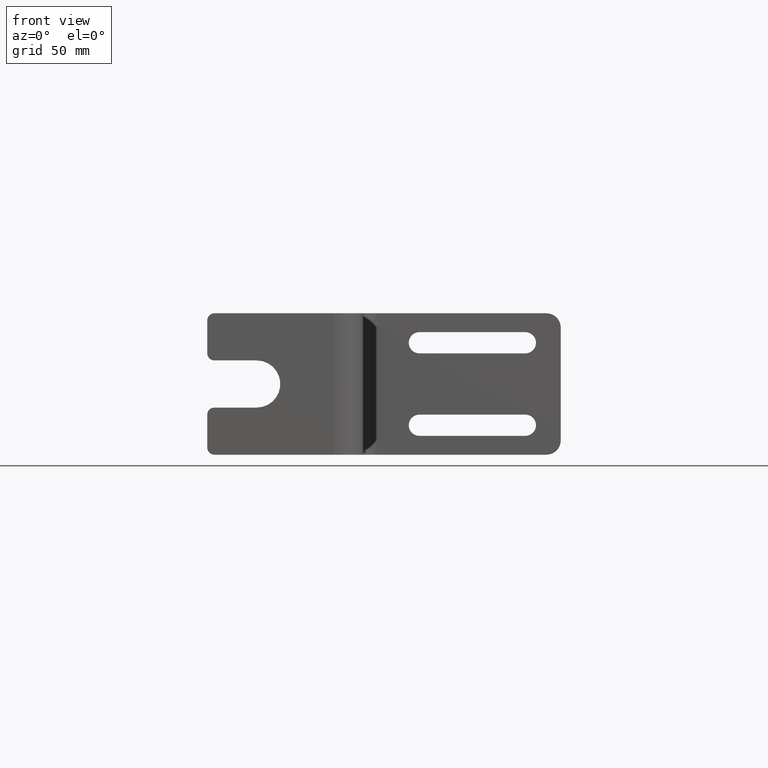
[diagram: clean part render]
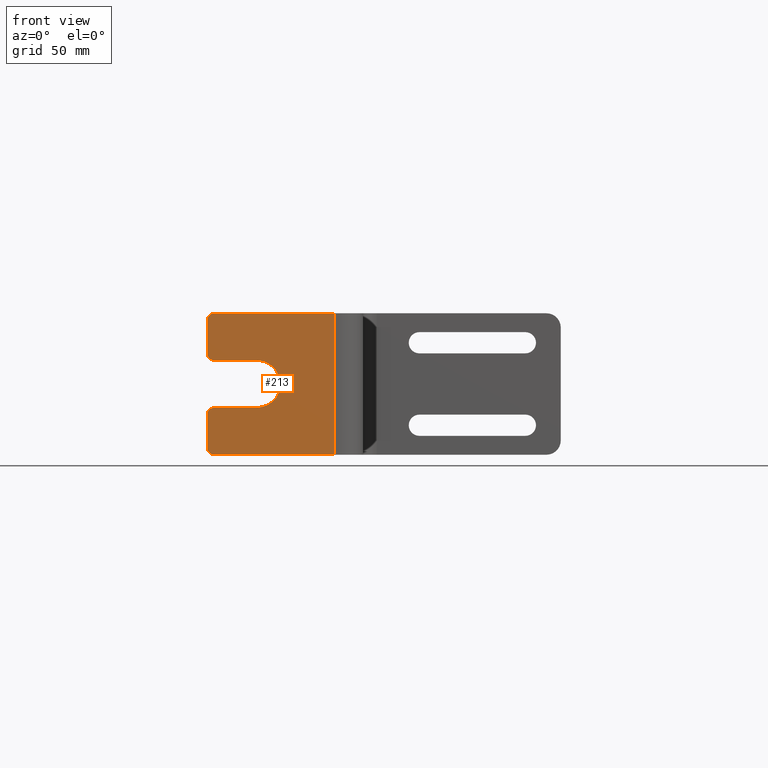
[diagram: same view with one face highlighted and labeled with its STEP entity id]
A machine part, front view. The second image highlights one B-rep face of the part: STEP entity #213.
In plain terms, the highlighted planar face has unit normal (0, 1, 0).
Its self-contained STEP definition (entity closure, byte-faithful):
#213=ADVANCED_FACE('Pad.4',(#530),#531,.F.);
#265=EDGE_CURVE('EdgeFillet.6',#612,#609,#613,.T.);
#363=EDGE_CURVE('Pad.4',#609,#737,#738,.T.);
#369=EDGE_CURVE('EdgeFillet.7',#745,#737,#746,.T.);
#375=EDGE_CURVE('Pad.4',#753,#612,#754,.F.);
#381=EDGE_CURVE('EdgeFillet.7',#753,#761,#762,.T.);
#387=EDGE_CURVE('Pad.5',#769,#745,#770,.T.);
#389=EDGE_CURVE('EdgeFillet.7',#772,#769,#773,.T.);
#391=EDGE_CURVE('Pocket.5',#775,#772,#776,.F.);
#393=EDGE_CURVE('Pocket.5',#778,#775,#779,.T.);
#395=EDGE_CURVE('Pocket.5',#781,#778,#782,.F.);
#397=EDGE_CURVE('EdgeFillet.7',#784,#781,#785,.T.);
#399=EDGE_CURVE('Pad.5',#761,#784,#787,.T.);
#530=FACE_OUTER_BOUND('',#914,.T.);
#531=PLANE('',#915);
#609=VERTEX_POINT('',#1018);
#612=VERTEX_POINT('',#1022);
#613=LINE('',#1023,#1024);
#737=VERTEX_POINT('',#1226);
#738=LINE('',#1227,#1228);
#745=VERTEX_POINT('',#1240);
#746=CIRCLE('',#1241,3.0);
#753=VERTEX_POINT('',#1252);
#754=LINE('',#1253,#1254);
#761=VERTEX_POINT('',#1266);
#762=CIRCLE('',#1267,3.0);
#769=VERTEX_POINT('',#1278);
#770=LINE('',#1279,#1280);
#772=VERTEX_POINT('',#1283);
#773=CIRCLE('',#1284,3.0);
#775=VERTEX_POINT('',#1287);
#776=LINE('',#1288,#1289);
#778=VERTEX_POINT('',#1292);
#779=CIRCLE('',#1293,10.0);
#781=VERTEX_POINT('',#1296);
#782=LINE('',#1297,#1298);
#784=VERTEX_POINT('',#1301);
#785=CIRCLE('',#1302,3.0);
#787=LINE('',#1305,#1306);
#914=EDGE_LOOP('',(#1625,#1626,#1627,#1628,#1629,#1630,#1631,#1632,#1633,#1634,#1635,#1636));
#915=AXIS2_PLACEMENT_3D('',#1637,#1638,#1639);
#1018=CARTESIAN_POINT('',(-6.0,1.13686837721616E-013,60.0));
#1022=CARTESIAN_POINT('',(-6.0,1.13686837721616E-013,0.0));
#1023=CARTESIAN_POINT('',(-6.0,1.13686837721616E-013,30.0));
#1024=VECTOR('',#1747,1.0);
#1226=CARTESIAN_POINT('',(-57.0,1.13686837721616E-013,60.0));
#1227=CARTESIAN_POINT('',(-31.5,1.13686837721616E-013,60.0));
#1228=VECTOR('',#1834,1.0);
#1240=CARTESIAN_POINT('',(-60.0,1.13686837721616E-013,57.0));
#1241=AXIS2_PLACEMENT_3D('',#1837,#1838,#1839);
#1252=CARTESIAN_POINT('',(-57.0,1.13686837721616E-013,0.0));
#1253=CARTESIAN_POINT('',(-31.5,1.13686837721616E-013,0.0));
#1254=VECTOR('',#1844,1.0);
#1266=CARTESIAN_POINT('',(-60.0,1.13686837721616E-013,3.0));
#1267=AXIS2_PLACEMENT_3D('',#1847,#1848,#1849);
#1278=CARTESIAN_POINT('',(-60.0,1.13686837721616E-013,43.0));
#1279=CARTESIAN_POINT('',(-60.0,1.13686837721616E-013,50.0));
#1280=VECTOR('',#1854,1.0);
#1283=CARTESIAN_POINT('',(-57.0,1.13686837721616E-013,40.0));
#1284=AXIS2_PLACEMENT_3D('',#1855,#1856,#1857);
#1287=CARTESIAN_POINT('',(-39.0,1.13686837721616E-013,40.0));
#1288=CARTESIAN_POINT('',(-48.0,1.13686837721616E-013,40.0));
#1289=VECTOR('',#1858,1.0);
#1292=CARTESIAN_POINT('',(-39.0,1.13686837721616E-013,20.0));
#1293=AXIS2_PLACEMENT_3D('',#1859,#1860,#1861);
#1296=CARTESIAN_POINT('',(-57.0,1.13686837721616E-013,20.0));
#1297=CARTESIAN_POINT('',(-48.0,1.13686837721616E-013,20.0));
#1298=VECTOR('',#1862,1.0);
#1301=CARTESIAN_POINT('',(-60.0,1.13686837721616E-013,17.0));
#1302=AXIS2_PLACEMENT_3D('',#1863,#1864,#1865);
#1305=CARTESIAN_POINT('',(-60.0,1.13686837721616E-013,10.0));
#1306=VECTOR('',#1866,1.0);
#1625=ORIENTED_EDGE('',*,*,#363,.T.);
#1626=ORIENTED_EDGE('',*,*,#369,.F.);
#1627=ORIENTED_EDGE('',*,*,#387,.F.);
#1628=ORIENTED_EDGE('',*,*,#389,.F.);
#1629=ORIENTED_EDGE('',*,*,#391,.F.);
#1630=ORIENTED_EDGE('',*,*,#393,.F.);
#1631=ORIENTED_EDGE('',*,*,#395,.F.);
#1632=ORIENTED_EDGE('',*,*,#397,.F.);
#1633=ORIENTED_EDGE('',*,*,#399,.F.);
#1634=ORIENTED_EDGE('',*,*,#381,.F.);
#1635=ORIENTED_EDGE('',*,*,#375,.T.);
#1636=ORIENTED_EDGE('',*,*,#265,.T.);
#1637=CARTESIAN_POINT('',(6.00000000000006,1.13686837721616E-013,0.0));
#1638=DIRECTION('',(0.0,1.0,0.0));
#1639=DIRECTION('',(1.0,0.0,-0.0));
#1747=DIRECTION('',(0.0,0.0,1.0));
#1834=DIRECTION('',(-1.0,0.0,0.0));
#1837=CARTESIAN_POINT('',(-57.0,1.13686837721616E-013,57.0));
#1838=DIRECTION('',(0.0,1.0,-0.0));
#1839=DIRECTION('',(-1.0,0.0,0.0));
#1844=DIRECTION('',(-1.0,0.0,0.0));
#1847=CARTESIAN_POINT('',(-57.0,1.13686837721616E-013,3.0));
#1848=DIRECTION('',(0.0,1.0,-0.0));
#1849=DIRECTION('',(-1.0,0.0,0.0));
#1854=DIRECTION('',(0.0,0.0,1.0));
#1855=CARTESIAN_POINT('',(-57.0,1.13686837721616E-013,43.0));
#1856=DIRECTION('',(0.0,1.0,-0.0));
#1857=DIRECTION('',(-1.0,0.0,0.0));
#1858=DIRECTION('',(1.0,0.0,0.0));
#1859=CARTESIAN_POINT('',(-39.0,1.13686837721616E-013,30.0));
#1860=DIRECTION('',(0.0,-1.0,-0.0));
#1861=DIRECTION('',(-0.0,0.0,-1.0));
#1862=DIRECTION('',(-1.0,0.0,0.0));
#1863=CARTESIAN_POINT('',(-57.0,1.13686837721616E-013,17.0));
#1864=DIRECTION('',(0.0,1.0,-0.0));
#1865=DIRECTION('',(-1.0,0.0,0.0));
#1866=DIRECTION('',(0.0,0.0,1.0));